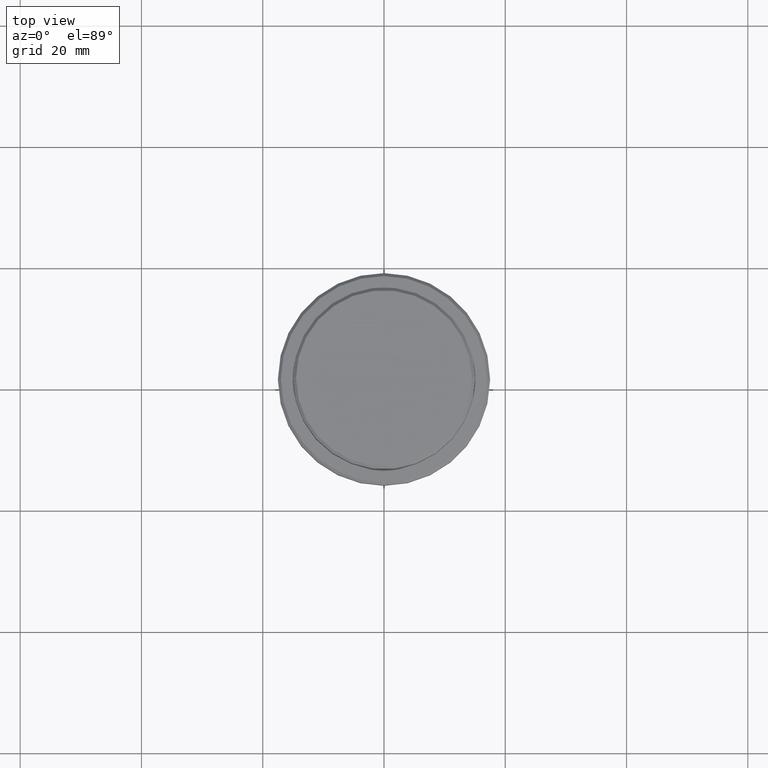
[diagram: clean part render]
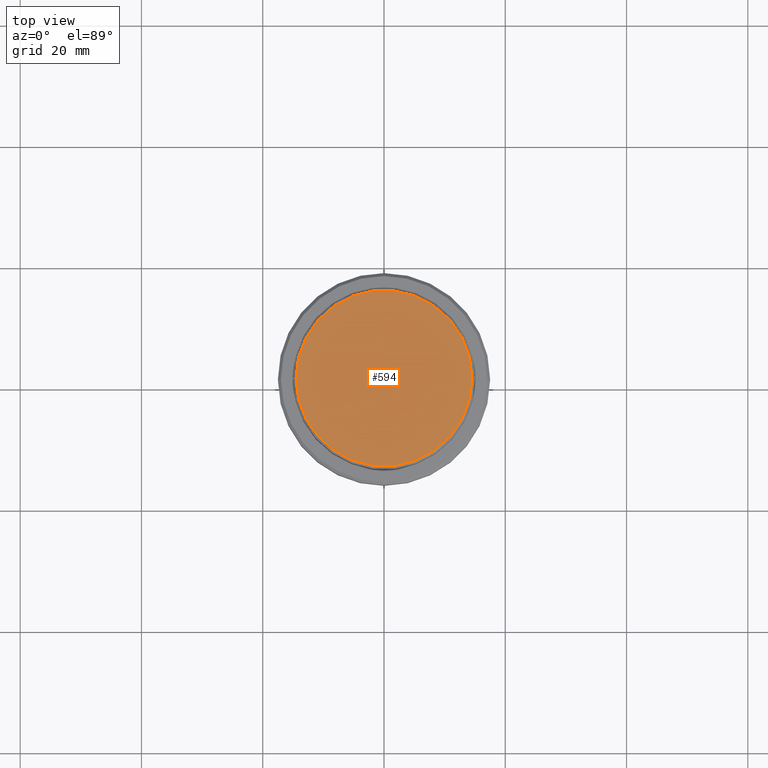
[diagram: same view with one face highlighted and labeled with its STEP entity id]
A machine part, top view. The second image highlights one B-rep face of the part: STEP entity #594.
In plain terms, the highlighted planar face has unit normal (0, -0, 1).
Its self-contained STEP definition (entity closure, byte-faithful):
#31 = AXIS2_PLACEMENT_3D ( 'NONE', #1301, #224, #418 ) ;
#98 = CIRCLE ( 'NONE', #260, 14.49999999999995559 ) ;
#141 = EDGE_CURVE ( 'NONE', #178, #262, #1078, .T. ) ;
#157 = CARTESIAN_POINT ( 'NONE',  ( 0.000000000000000000, 0.000000000000000000, 0.000000000000000000 ) ) ;
#178 = VERTEX_POINT ( 'NONE', #1056 ) ;
#224 = DIRECTION ( 'NONE',  ( 0.000000000000000000, -0.000000000000000000, 1.000000000000000000 ) ) ;
#260 = AXIS2_PLACEMENT_3D ( 'NONE', #157, #1145, #1254 ) ;
#262 = VERTEX_POINT ( 'NONE', #678 ) ;
#415 = DIRECTION ( 'NONE',  ( -0.000000000000000000, -0.000000000000000000, 1.000000000000000000 ) ) ;
#418 = DIRECTION ( 'NONE',  ( 1.000000000000000000, 0.000000000000000000, 0.000000000000000000 ) ) ;
#489 = AXIS2_PLACEMENT_3D ( 'NONE', #1178, #415, #633 ) ;
#508 = EDGE_CURVE ( 'NONE', #262, #178, #98, .T. ) ;
#594 = ADVANCED_FACE ( 'NONE', ( #982 ), #748, .T. ) ;
#633 = DIRECTION ( 'NONE',  ( 1.000000000000000000, 0.000000000000000000, 0.000000000000000000 ) ) ;
#678 = CARTESIAN_POINT ( 'NONE',  ( -14.49999999999995559, 0.000000000000000000, 0.000000000000000000 ) ) ;
#748 = PLANE ( 'NONE',  #31 ) ;
#752 = EDGE_LOOP ( 'NONE', ( #1101, #853 ) ) ;
#853 = ORIENTED_EDGE ( 'NONE', *, *, #141, .T. ) ;
#982 = FACE_OUTER_BOUND ( 'NONE', #752, .T. ) ;
#1056 = CARTESIAN_POINT ( 'NONE',  ( 14.49999999999995559, 1.806354028742343041E-15, 0.000000000000000000 ) ) ;
#1078 = CIRCLE ( 'NONE', #489, 14.49999999999995559 ) ;
#1101 = ORIENTED_EDGE ( 'NONE', *, *, #508, .T. ) ;
#1145 = DIRECTION ( 'NONE',  ( -0.000000000000000000, -0.000000000000000000, 1.000000000000000000 ) ) ;
#1178 = CARTESIAN_POINT ( 'NONE',  ( 0.000000000000000000, 0.000000000000000000, 0.000000000000000000 ) ) ;
#1254 = DIRECTION ( 'NONE',  ( 1.000000000000000000, 0.000000000000000000, 0.000000000000000000 ) ) ;
#1301 = CARTESIAN_POINT ( 'NONE',  ( 0.000000000000000000, 0.000000000000000000, 0.000000000000000000 ) ) ;